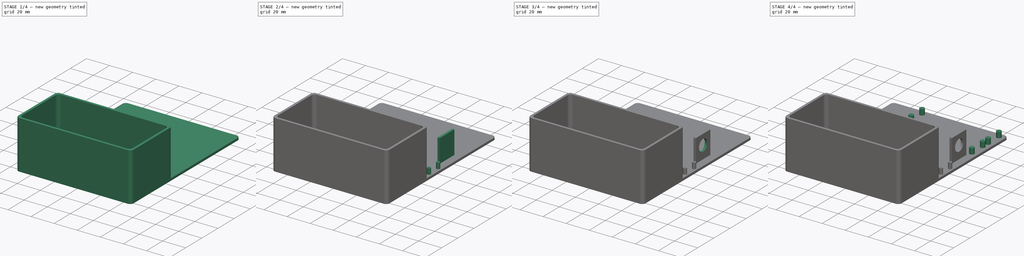
[diagram: build sequence overview — one tinted view per stage of 4, left to right]
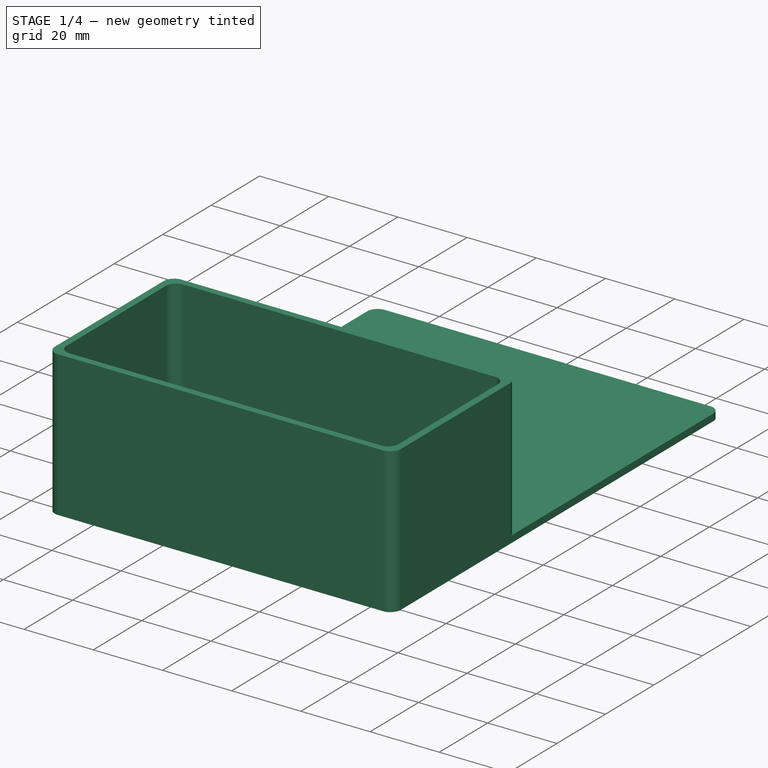
[diagram: stage 1 of 4 — iso view after this stage's code; geometry added in this stage tinted green]
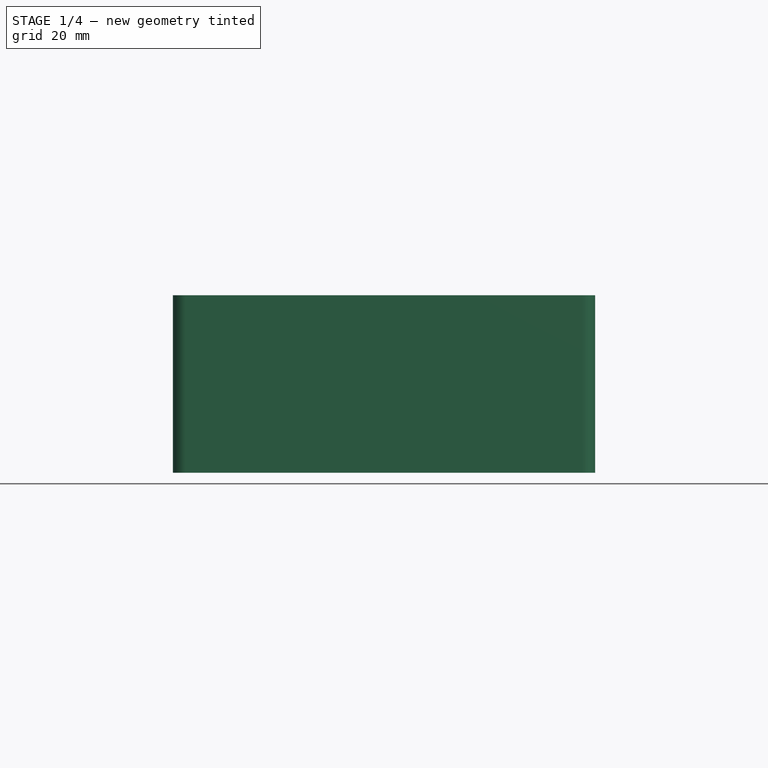
[diagram: stage 1 of 4 — front view after this stage's code; geometry added in this stage tinted green]
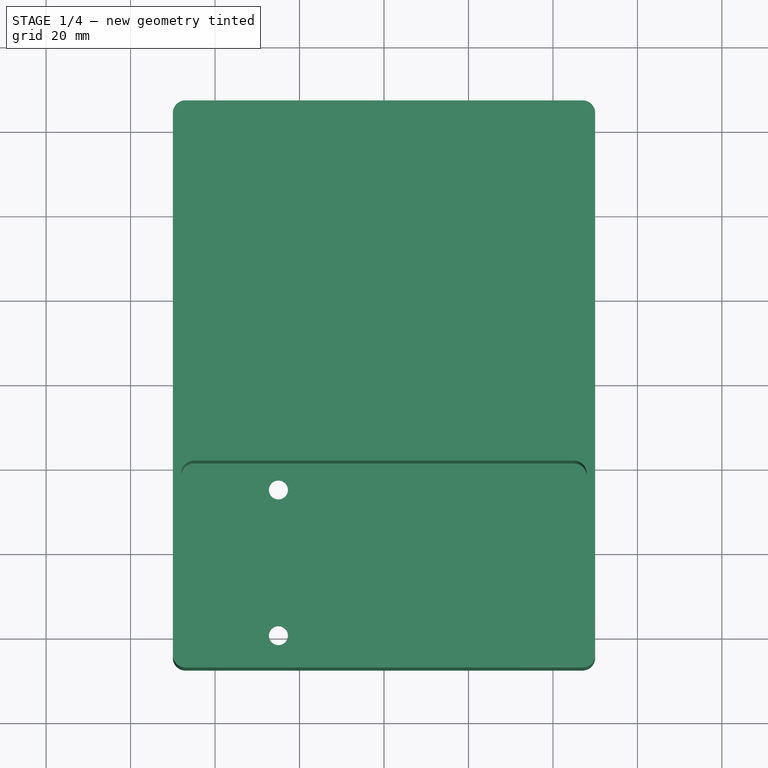
[diagram: stage 1 of 4 — top view after this stage's code; geometry added in this stage tinted green]
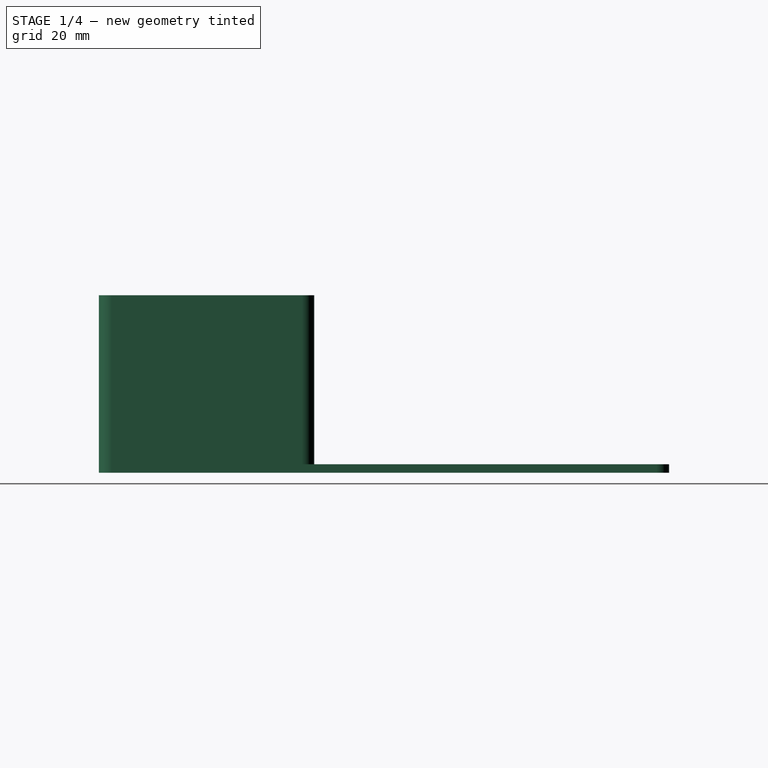
[diagram: stage 1 of 4 — right view after this stage's code; geometry added in this stage tinted green]
FCSTD DOCUMENT  (FreeCAD 0.22R36807 (Git))
Label: Jaackd Aeroponics Controller 2.0 - Scaffold - old
License: Creative Commons Attribution 4.0
LicenseURL: https://creativecommons.org/licenses/by/4.0/
objects: Sketcher::SketchObject×10, PartDesign::Pad×7, PartDesign::SubShapeBinder×7, PartDesign::Hole×3, PartDesign::Pocket×2, Spreadsheet::Sheet×1, PartDesign::Body×1
note: 42 computed .brp shape members not serialized (recipe doc carries the construction recipe); baked Part::Feature solids carry a one-line shape summary decoded from their .brp
EXTERNAL_REF file=CrocSee 12V DC Diaphragm Transfer Pump 1.3 LPM.FCStd obj=Body
EXTERNAL_REF file=Raspberry Pi Pico W v2.FCStd obj=Part
EXTERNAL_REF file=Buck Converter.FCStd obj=Body
EXTERNAL_REF file=12V DC Adapter Plug.FCStd obj=Body
EXTERNAL_REF file=Relay Switch 3.3V in 10A, 250V out.FCStd obj=Body

FEATURE [Sketcher::SketchObject] Sketch  label="Base Sketch"
  AttachmentSupport = -> [XY_Plane]
  FullyConstrained = true
  MapMode = 5
  expr: Constraints[4] = <<config>>.scaffoldWidth
  expr: Constraints[5] = <<config>>.scaffoldHeight
  sketch-geometry (12):
    g0: LineSegment StartX=-50 StartY=64.5 StartZ=0 EndX=-50 EndY=-64.5 EndZ=0
    g1: LineSegment StartX=-47 StartY=-67.5 StartZ=0 EndX=47 EndY=-67.5 EndZ=0
    g2: LineSegment StartX=50 StartY=-64.5 StartZ=0 EndX=50 EndY=64.5 EndZ=0
    g3: LineSegment StartX=47 StartY=67.5 StartZ=0 EndX=-47 EndY=67.5 EndZ=0
    g4: ArcOfCircle CenterX=-47 CenterY=64.5 CenterZ=0 NormalX=0 NormalY=0 NormalZ=1 AngleXU=0 Radius=3 StartAngle=1.5708 EndAngle=3.14159
    g5: GeomPoint X=-50 Y=67.5 Z=0
    g6: ArcOfCircle CenterX=47 CenterY=64.5 CenterZ=0 NormalX=0 NormalY=0 NormalZ=1 AngleXU=0 Radius=3 StartAngle=1.2e-15 EndAngle=1.5708
    g7: GeomPoint X=50 Y=67.5 Z=0
    g8: ArcOfCircle CenterX=47 CenterY=-64.5 CenterZ=0 NormalX=0 NormalY=0 NormalZ=1 AngleXU=0 Radius=3 StartAngle=4.71239 EndAngle=6.28319
    g9: GeomPoint X=50 Y=-67.5 Z=0
    g10: ArcOfCircle CenterX=-47 CenterY=-64.5 CenterZ=0 NormalX=0 NormalY=0 NormalZ=1 AngleXU=0 Radius=3 StartAngle=3.14159 EndAngle=4.71239
    g11: GeomPoint X=-50 Y=-67.5 Z=0
  constraints (27):
    c: Vertical(g0)
    c: Vertical(g2)
    c: Horizontal(g1)
    c: Horizontal(g3)
    c: Distance(g5,g7) = 100
    c: Distance(g11,g5) = 135
    c: Symmetric(g7,g11,g-1)
    c: PointOnObject(g5,g3)
    c: PointOnObject(g5,g0)
    c: Tangent(g3,g4) = -1.5708
    c: Tangent(g0,g4) = -1.5708
    c: PointOnObject(g7,g3)
    c: PointOnObject(g7,g2)
    c: Tangent(g3,g6) = -1.5708
    c: Tangent(g2,g6) = -1.5708
    c: PointOnObject(g9,g2)
    c: PointOnObject(g9,g1)
    c: Tangent(g2,g8) = -1.5708
    c: Tangent(g1,g8) = -1.5708
    c: PointOnObject(g11,g1)
    c: PointOnObject(g11,g0)
    c: Tangent(g1,g10) = -1.5708
    c: Tangent(g0,g10) = -1.5708
    c: Equal(g4,g6)
    c: Equal(g6,g8)
    c: Equal(g8,g10)
    c: Radius(g4) = 3
FEATURE [Spreadsheet::Sheet] Spreadsheet  label="config"
  cells = A2='scaffoldHeight; B2(scaffoldHeight)=135; A3='scaffoldWidth; B3(scaffoldWidth)=100; A4='picoPostHeight; B4(picoPostHeight)=5; A5='picoPostRadius; B5(picoPostRadius)=1.5; A6='picoDistanceFromEdge; B6(picoDistanceFromEdge)=5; A7='buckConverterPostHeight; B7(buckConverterPostHeight)=5
FEATURE [PartDesign::Pad] Pad  label="Base"
  Direction = (0,0,1)
  Length = 2
  Length2 = 10
  Profile = -> Sketch
  ReferenceAxis = -> Sketch [N_Axis]
  Suppressed = false
  Type = 0
FEATURE [PartDesign::SubShapeBinder] Binder  label="Binder - CrocSee Pump"
  BindCopyOnChange = 0
  BindMode = 0
  ClaimChildren = false
  Context = -> Body [Binder.]
  Fuse = false
  MakeFace = true
  OffsetFill = false
  OffsetIntersection = false
  OffsetJoinType = 0
  OffsetOpenResult = false
  PartialLoad = false
  Placement = pos=(-25,-42,2) rot=(0,0,-1;1.5708rad)
  Relative = true
  Support = -> [<external CrocSee 12V DC Diaphragm Transfer Pump 1.3 LPM.FCStd>#Body[Pad009.Face19,Pad009.Edge77]]
  _Version = 2
FEATURE [Sketcher::SketchObject] Sketch001  label="Pump Enclosure Sketch"
  AttachmentSupport = -> [Pad]
  ExternalGeometry = -> [Pad,Binder]
  FullyConstrained = true
  MapMode = 5
  Placement = pos=(0,0,2) rot=(0,0,1;0rad)
  sketch-geometry (20):
    g0: LineSegment StartX=-47 StartY=-67.5 StartZ=0 EndX=47 EndY=-67.5 EndZ=0
    g1: LineSegment StartX=50 StartY=-64.5 StartZ=0 EndX=50 EndY=-19.5 EndZ=0
    g2: LineSegment StartX=47 StartY=-16.5 StartZ=0 EndX=-47 EndY=-16.5 EndZ=0
    g3: LineSegment StartX=-50 StartY=-19.5 StartZ=0 EndX=-50 EndY=-64.5 EndZ=0
    g4: ArcOfCircle CenterX=-47 CenterY=-64.5 CenterZ=0 NormalX=0 NormalY=0 NormalZ=1 AngleXU=0 Radius=3 StartAngle=3.14159 EndAngle=4.71239
    g5: ArcOfCircle CenterX=47 CenterY=-64.5 CenterZ=0 NormalX=0 NormalY=0 NormalZ=1 AngleXU=0 Radius=3 StartAngle=4.71239 EndAngle=6.28319
    g6: ArcOfCircle CenterX=47 CenterY=-19.5 CenterZ=0 NormalX=0 NormalY=0 NormalZ=1 AngleXU=0 Radius=3 StartAngle=5e-16 EndAngle=1.5708
    g7: ArcOfCircle CenterX=-47 CenterY=-19.5 CenterZ=0 NormalX=0 NormalY=0 NormalZ=1 AngleXU=0 Radius=3 StartAngle=1.5708 EndAngle=3.14159
    g8: GeomPoint X=-50 Y=-67.5 Z=0
    g9: GeomPoint X=50 Y=-16.5 Z=0
    g10: LineSegment StartX=-48 StartY=-21.5 StartZ=0 EndX=-48 EndY=-62.5 EndZ=0
    g11: LineSegment StartX=-45 StartY=-65.5 StartZ=0 EndX=45 EndY=-65.5 EndZ=0
    g12: LineSegment StartX=48 StartY=-62.5 StartZ=0 EndX=48 EndY=-21.5 EndZ=0
    g13: LineSegment StartX=45 StartY=-18.5 StartZ=0 EndX=-45 EndY=-18.5 EndZ=0
    g14: ArcOfCircle CenterX=-45 CenterY=-21.5 CenterZ=0 NormalX=0 NormalY=0 NormalZ=1 AngleXU=0 Radius=3 StartAngle=1.5708 EndAngle=3.14159
    g15: ArcOfCircle CenterX=-45 CenterY=-62.5 CenterZ=0 NormalX=0 NormalY=0 NormalZ=1 AngleXU=0 Radius=3 StartAngle=3.14159 EndAngle=4.71239
    g16: ArcOfCircle CenterX=45 CenterY=-62.5 CenterZ=0 NormalX=0 NormalY=0 NormalZ=1 AngleXU=0 Radius=3 StartAngle=4.71239 EndAngle=6.28319
    g17: ArcOfCircle CenterX=45 CenterY=-21.5 CenterZ=0 NormalX=0 NormalY=0 NormalZ=1 AngleXU=0 Radius=3 StartAngle=5e-16 EndAngle=1.5708
    g18: GeomPoint X=-48 Y=-18.5 Z=0
    g19: GeomPoint X=48 Y=-65.5 Z=0
  constraints (46):
    c: Tangent(g0,g4) = -1.5708
    c: Tangent(g0,g5) = -1.5708
    c: Tangent(g1,g5) = -1.5708
    c: Tangent(g1,g6) = -1.5708
    c: Tangent(g2,g6) = -1.5708
    c: Tangent(g2,g7) = -1.5708
    c: Tangent(g3,g7) = -1.5708
    c: Tangent(g3,g4) = -1.5708
    c: Horizontal(g0)
    c: Horizontal(g2)
    c: Vertical(g1)
    c: Vertical(g3)
    c: Equal(g5,g6)
    c: Equal(g6,g7)
    c: PointOnObject(g8,g0)
    c: PointOnObject(g8,g3)
    c: PointOnObject(g9,g1)
    c: PointOnObject(g9,g2)
    c: Radius(g5) = 3
    c: Coincident(g4,g-3)
    c: Coincident(g5,g-4)
    c: DistanceY(g-6,g7) = 2
    c: Tangent(g10,g14) = -1.5708
    c: Tangent(g10,g15) = -1.5708
    c: Tangent(g11,g15) = -1.5708
    c: Tangent(g11,g16) = -1.5708
    c: Tangent(g12,g16) = -1.5708
    c: Tangent(g12,g17) = -1.5708
    c: Tangent(g13,g17) = -1.5708
    c: Tangent(g13,g14) = -1.5708
    c: Vertical(g10)
    c: Vertical(g12)
    c: Horizontal(g11)
    c: Horizontal(g13)
    c: Equal(g14,g15)
    c: Equal(g15,g16)
    c: Equal(g16,g17)
    c: PointOnObject(g18,g10)
    c: PointOnObject(g18,g13)
    c: PointOnObject(g19,g11)
    c: PointOnObject(g19,g12)
    c: Radius(g15) = 3
    c: DistanceY(g0,g11) = 2
    c: DistanceY(g13,g2) = 2
    c: DistanceX(g3,g10) = 2
    c: DistanceX(g12,g1) = 2
FEATURE [PartDesign::Pad] Pad001  label="Pump Enclosure"
  BaseFeature = -> Pad
  Direction = (0,0,1)
  Length = 40
  Length2 = 10
  Profile = -> Sketch001
  ReferenceAxis = -> Sketch001 [N_Axis]
  Suppressed = false
  Type = 0
FEATURE [Sketcher::SketchObject] Sketch002  label="Pump Mounting Holes Sketch"
  AttachmentSupport = -> [Pad001]
  ExternalGeometry = -> [Binder]
  FullyConstrained = true
  MapMode = 5
  Placement = pos=(0,0,2) rot=(0,0,1;0rad)
  sketch-geometry (2):
    g0: Circle CenterX=-25 CenterY=-24.75 CenterZ=0 NormalX=0 NormalY=0 NormalZ=1 AngleXU=0 Radius=2.25
    g1: Circle CenterX=-25 CenterY=-59.25 CenterZ=0 NormalX=0 NormalY=0 NormalZ=1 AngleXU=0 Radius=2.25
  constraints (4):
    c: Radius(g0) = 2.25
    c: Equal(g0,g1)
    c: Coincident(g-4,g0)
    c: Coincident(g1,g-3)
FEATURE [PartDesign::Pocket] Pocket  label="Pump Mounting Holes"
  BaseFeature = -> Pad001
  Direction = (0,0,-1)
  Length = 5
  Length2 = 5
  Profile = -> Sketch002
  ReferenceAxis = -> Sketch002 [N_Axis]
  Suppressed = false
  Type = 1
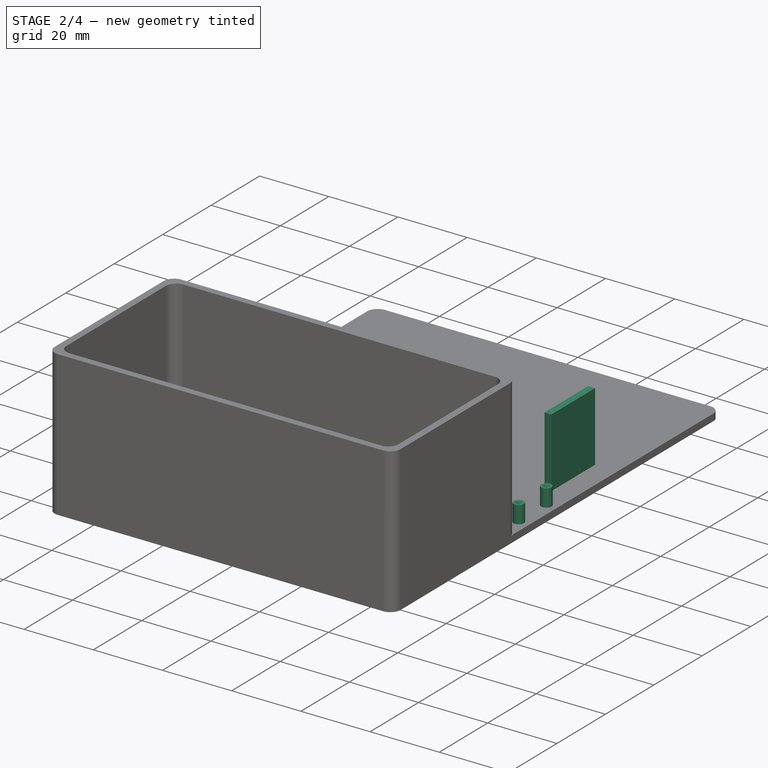
[diagram: stage 2 of 4 — iso view after this stage's code; geometry added in this stage tinted green]
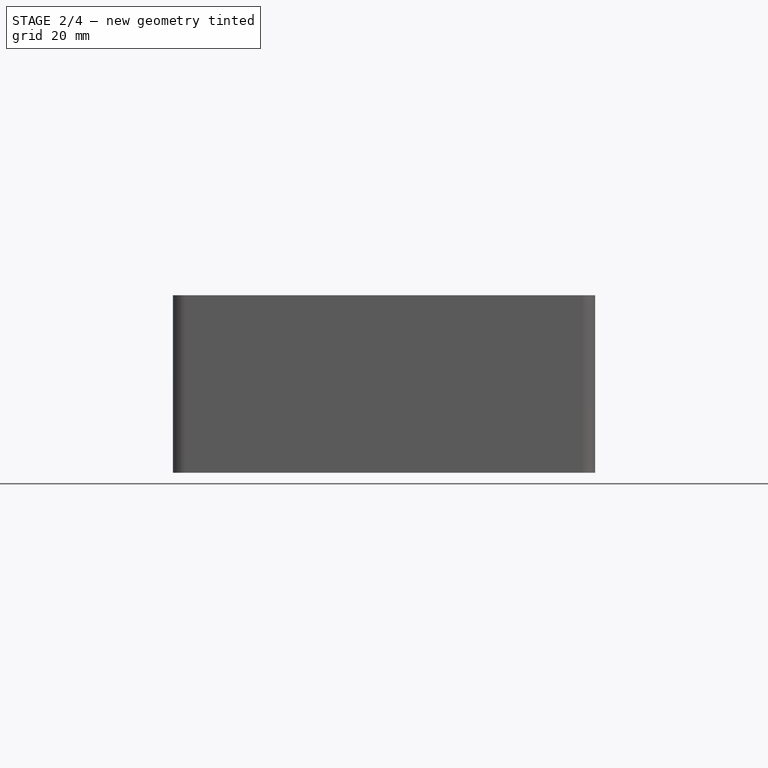
[diagram: stage 2 of 4 — front view after this stage's code; geometry added in this stage tinted green]
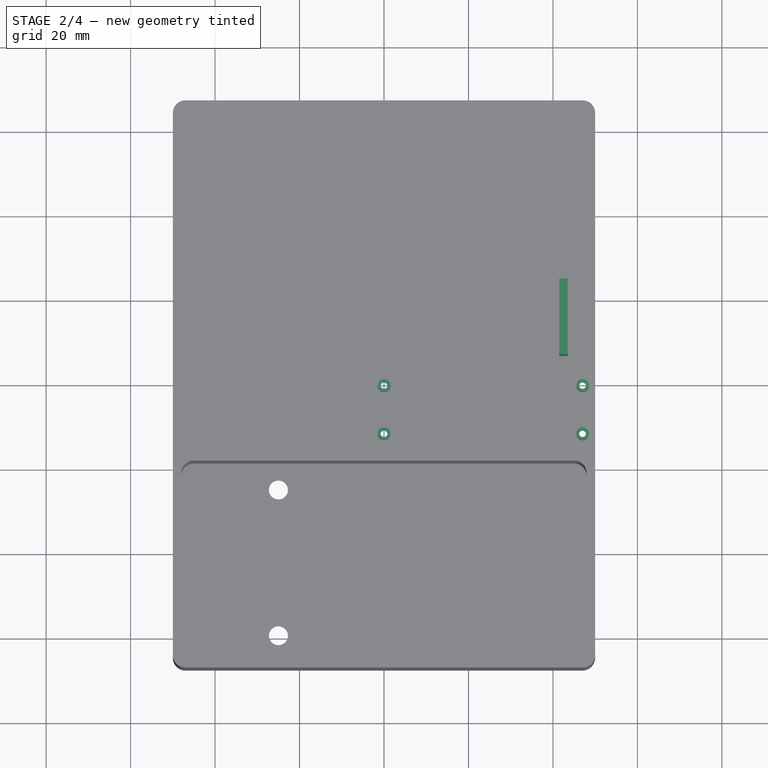
[diagram: stage 2 of 4 — top view after this stage's code; geometry added in this stage tinted green]
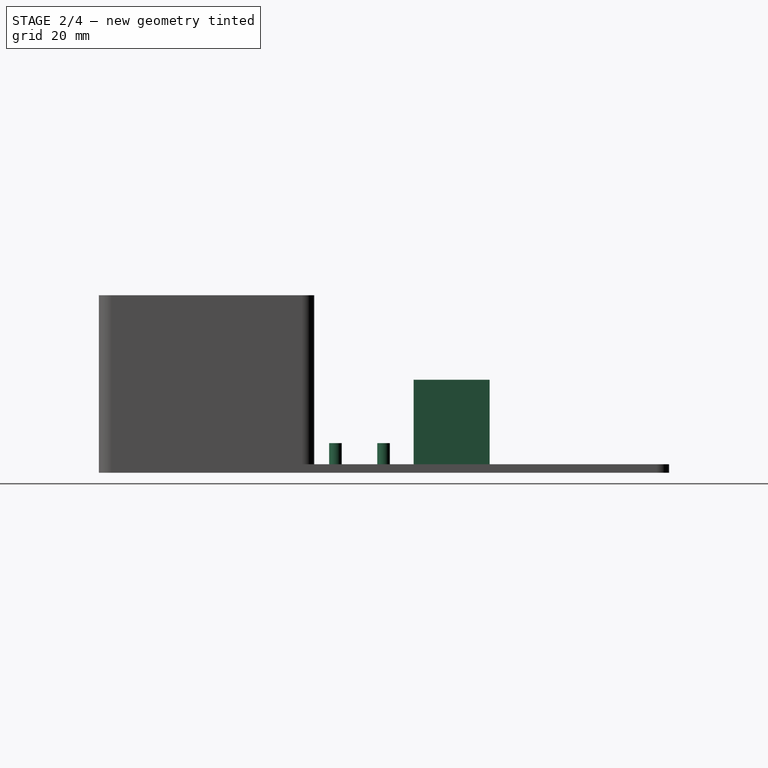
[diagram: stage 2 of 4 — right view after this stage's code; geometry added in this stage tinted green]
FEATURE [PartDesign::SubShapeBinder] Binder001  label="Binder - PicoW"
  BindCopyOnChange = 0
  BindMode = 0
  ClaimChildren = false
  Context = -> Body [Binder001.]
  Fuse = false
  MakeFace = true
  OffsetFill = false
  OffsetIntersection = false
  OffsetJoinType = 0
  OffsetOpenResult = false
  PartialLoad = false
  Placement = pos=(49,-5.8,2) rot=(0,0,-1;1.5708rad)
  Relative = true
  Support = -> [<external Raspberry Pi Pico W v2.FCStd>#Part[RaspBerryPi_Pico_W_v2.RaspBerryPi_Pico_CircuitBoard_logo_v15.Part__Feature012.Edge4,RaspBerryPi_Pico_W_v2.RaspBerryPi_Pico_CircuitBoard_logo_v15.Part__Feature013.Edge4,RaspBerryPi_Pico_W_v2.RaspBerryPi_Pico_CircuitBoard_logo_v15.Part__Feature010.Edge4,RaspBerryPi_Pico_W_v2.RaspBerryPi_Pico_CircuitBoard_logo_v15.Part__Feature011.Edge4]]
  _Version = 2
FEATURE [Sketcher::SketchObject] Sketch003  label="PicoW Mounting Posts Sketch"
  AttachmentSupport = -> [Pocket]
  ExternalGeometry = -> [Binder001,Pocket]
  FullyConstrained = true
  MapMode = 5
  Placement = pos=(0,0,2) rot=(0,0,1;0rad)
  expr: Constraints[0] = <<config>>.picoPostRadius
  expr: Constraints[9] = <<config>>.picoDistanceFromEdge
  sketch-geometry (5):
    g0: Circle CenterX=0.00504523 CenterY=-0.101301 CenterZ=0 NormalX=0 NormalY=0 NormalZ=1 AngleXU=0 Radius=1.5
    g1: Circle CenterX=0.00504523 CenterY=-11.5013 CenterZ=0 NormalX=0 NormalY=0 NormalZ=1 AngleXU=0 Radius=1.5
    g2: Circle CenterX=47.005 CenterY=-0.101301 CenterZ=0 NormalX=0 NormalY=0 NormalZ=1 AngleXU=0 Radius=1.5
    g3: Circle CenterX=47.005 CenterY=-11.5013 CenterZ=0 NormalX=0 NormalY=0 NormalZ=1 AngleXU=0 Radius=1.5
    g4: GeomPoint X=47 Y=-11.5 Z=0
  constraints (10):
    c: Radius(g0) = 1.5
    c: Coincident(g0,g-3)
    c: Coincident(g1,g-4)
    c: Coincident(g2,g-5)
    c: Coincident(g3,g-6)
    c: Equal(g3,g2)
    c: Equal(g2,g0)
    c: Equal(g0,g1)
    c: Vertical(g4,g-7)
    c: DistanceY(g-7,g4) = 5
FEATURE [PartDesign::Pad] Pad002  label="PicoW Mounting Posts"
  BaseFeature = -> Pocket
  Direction = (0,0,1)
  Length = 5
  Length2 = 10
  Profile = -> Sketch003
  ReferenceAxis = -> Sketch003 [N_Axis]
  Suppressed = false
  Type = 0
  expr: Length = <<config>>.picoPostHeight
FEATURE [PartDesign::Hole] Hole  label="PicoW Mounting Posts Holes"
  BaseFeature = -> Pad002
  CustomThreadClearance = 0
  Depth = 25
  DepthType = 0
  Diameter = 1.619
  DrillForDepth = false
  DrillPoint = 1
  DrillPointAngle = 118
  HoleCutCountersinkAngle = 90
  HoleCutCustomValues = false
  HoleCutDepth = 0
  HoleCutDiameter = 6.1
  HoleCutType = 0
  ModelThread = true
  Profile = -> Pad002 [Face30,Face29,Face27,Face28]
  Suppressed = false
  Tapered = false
  TaperedAngle = 90
  ThreadClass = 0
  ThreadDepth = 25
  ThreadDepthType = 0
  ThreadDirection = 0
  ThreadFit = 0
  ThreadSize = 6
  ThreadType = 1
  Threaded = true
  UseCustomThreadClearance = false
FEATURE [PartDesign::SubShapeBinder] Binder002  label="Binder - Buck Converter"
  BindCopyOnChange = 0
  BindMode = 0
  ClaimChildren = false
  Context = -> Body [Binder002.]
  Fuse = false
  MakeFace = true
  OffsetFill = false
  OffsetIntersection = false
  OffsetJoinType = 0
  OffsetOpenResult = false
  PartialLoad = false
  Placement = pos=(-23,16,3) rot=(0,0,1;0rad)
  Relative = true
  Support = -> [<external Buck Converter.FCStd>#Body[Pad003.Face4]]
  _Version = 2
FEATURE [PartDesign::SubShapeBinder] Binder003  label="Binder - 12V DC Barrel Connector"
  BindCopyOnChange = 0
  BindMode = 0
  ClaimChildren = false
  Context = -> Body [Binder003.]
  Fuse = false
  MakeFace = true
  OffsetFill = false
  OffsetIntersection = false
  OffsetJoinType = 0
  OffsetOpenResult = false
  PartialLoad = false
  Placement = pos=(50,16,13) rot=(0.57735,0.57735,0.57735;4.18879rad)
  Relative = true
  Support = -> [<external 12V DC Adapter Plug.FCStd>#Body[AdditiveLoft001.Face24,AdditiveLoft001.Face10,AdditiveLoft001.Face20,AdditiveLoft001.Face26]]
  _Version = 2
FEATURE [Sketcher::SketchObject] Sketch004  label="Barrel Connector Bracket Base Sketch"
  AttachmentSupport = -> [Hole]
  ExternalGeometry = -> [Binder003]
  FullyConstrained = true
  MapMode = 5
  Placement = pos=(0,0,2) rot=(0,0,1;0rad)
  sketch-geometry (6):
    g0: LineSegment StartX=41.5 StartY=25 StartZ=0 EndX=41.5 EndY=7 EndZ=0
    g1: LineSegment StartX=41.5 StartY=7 StartZ=0 EndX=43.5 EndY=7 EndZ=0
    g2: LineSegment StartX=43.5 StartY=7 StartZ=0 EndX=43.5 EndY=25 EndZ=0
    g3: LineSegment StartX=43.5 StartY=25 StartZ=0 EndX=41.5 EndY=25 EndZ=0
    g4: GeomPoint X=42.5 Y=16 Z=0
    g5: LineSegment StartX=42.5 StartY=16 StartZ=0 EndX=30 EndY=16 EndZ=0
  constraints (16):
    c: Coincident(g0,g1)
    c: Coincident(g1,g2)
    c: Coincident(g2,g3)
    c: Coincident(g3,g0)
    c: Vertical(g0)
    c: Vertical(g2)
    c: Horizontal(g1)
    c: Horizontal(g3)
    c: Distance(g0,g2) = 2
    c: Distance(g1,g3) = 18
    c: Symmetric(g2,g0,g4)
    c: Vertical(g0,g-3)
    c: Coincident(g5,g4)
    c: Horizontal(g5)
    c: DistanceY(g5) = 16
    c: DistanceX(g5) = 30
FEATURE [PartDesign::Pad] Pad003  label="Barrel Connector Bracket Base"
  BaseFeature = -> Hole
  Direction = (0,0,1)
  Length = 20
  Length2 = 10
  Profile = -> Sketch004
  ReferenceAxis = -> Sketch004 [N_Axis]
  Suppressed = false
  Type = 0
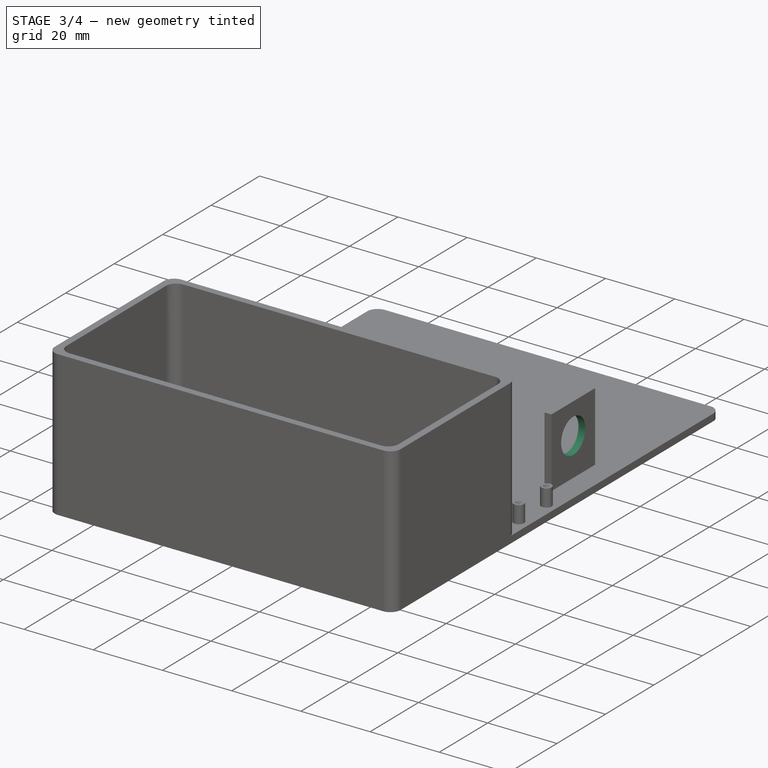
[diagram: stage 3 of 4 — iso view after this stage's code; geometry added in this stage tinted green]
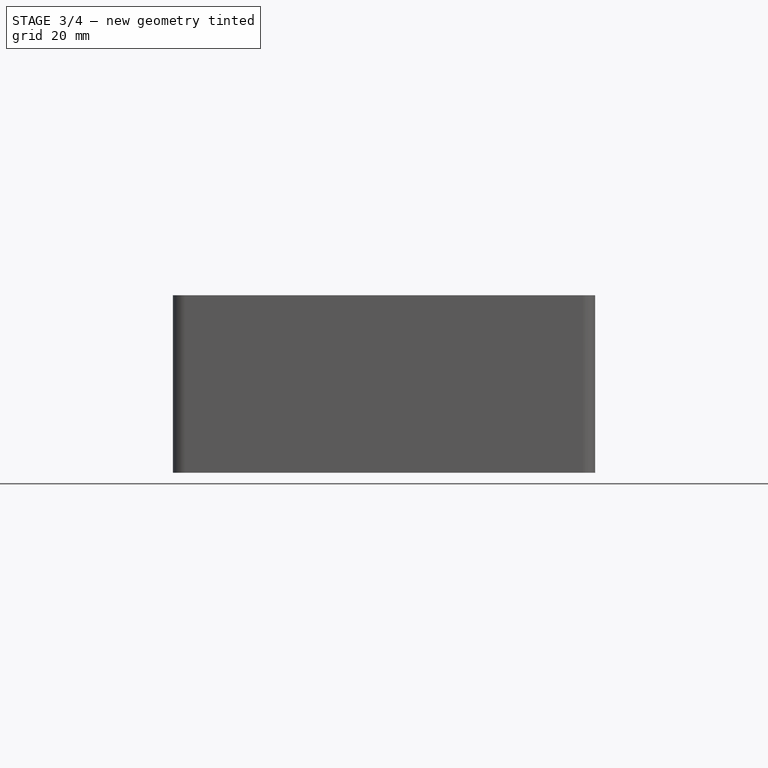
[diagram: stage 3 of 4 — front view after this stage's code; geometry added in this stage tinted green]
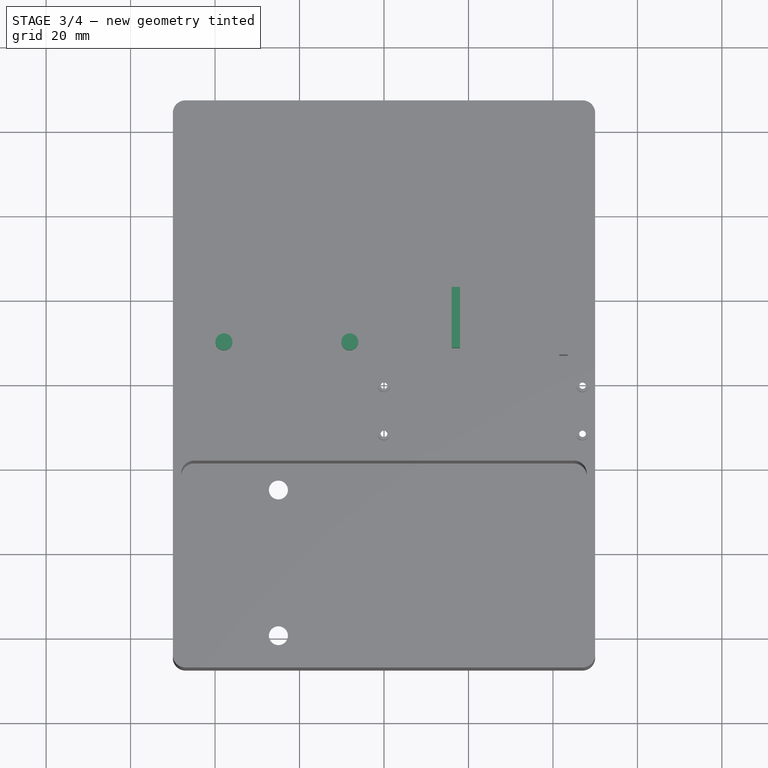
[diagram: stage 3 of 4 — top view after this stage's code; geometry added in this stage tinted green]
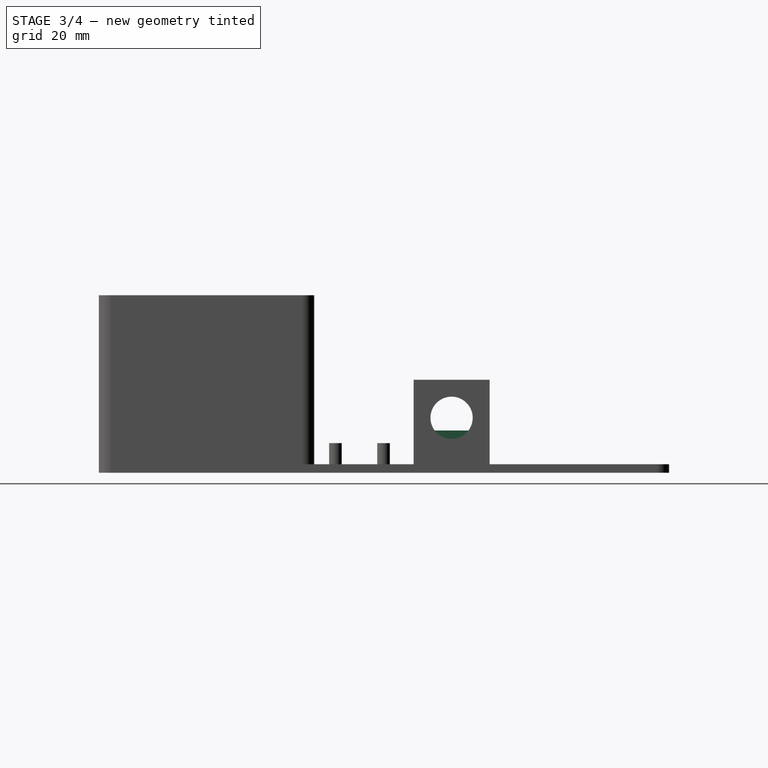
[diagram: stage 3 of 4 — right view after this stage's code; geometry added in this stage tinted green]
FEATURE [Sketcher::SketchObject] Sketch005  label="Barrel Connector Bracket Hole Sketch"
  AttachmentSupport = -> [Pad003]
  ExternalGeometry = -> [Pad003,Binder003]
  FullyConstrained = true
  MapMode = 5
  Placement = pos=(43.5,0,0) rot=(0.57735,0.57735,0.57735;2.0944rad)
  sketch-geometry (1):
    g0: Circle CenterX=16 CenterY=13 CenterZ=0 NormalX=0 NormalY=0 NormalZ=1 AngleXU=0 Radius=5
  constraints (2):
    c: Radius(g0) = 5
    c: Coincident(g0,g-6)
FEATURE [PartDesign::Pocket] Pocket001  label="Barrel Connector Bracket Hole"
  BaseFeature = -> Pad003
  Direction = (-1,0,0)
  Length = 5
  Length2 = 5
  Profile = -> Sketch005
  ReferenceAxis = -> Sketch005 [N_Axis]
  Suppressed = false
  Type = 1
FEATURE [Sketcher::SketchObject] Sketch006  label="Barrel Connector Back Brace Sketch"
  AttachmentSupport = -> [Pocket001]
  ExternalGeometry = -> [Binder003]
  FullyConstrained = true
  MapMode = 5
  Placement = pos=(0,0,2) rot=(0,0,1;0rad)
  sketch-geometry (4):
    g0: LineSegment StartX=18 StartY=23.2 StartZ=0 EndX=16 EndY=23.2 EndZ=0
    g1: LineSegment StartX=16 StartY=23.2 StartZ=0 EndX=16 EndY=8.8 EndZ=0
    g2: LineSegment StartX=16 StartY=8.8 StartZ=0 EndX=18 EndY=8.8 EndZ=0
    g3: LineSegment StartX=18 StartY=8.8 StartZ=0 EndX=18 EndY=23.2 EndZ=0
  constraints (10):
    c: Coincident(g0,g1)
    c: Coincident(g1,g2)
    c: Coincident(g2,g3)
    c: Coincident(g3,g0)
    c: Horizontal(g0)
    c: Horizontal(g2)
    c: Vertical(g1)
    c: Coincident(g0,g-3)
    c: Coincident(g2,g-4)
    c: DistanceX(g0,g0) = 2
FEATURE [PartDesign::Pad] Pad004  label="Barrel Connector Back Brace"
  BaseFeature = -> Pocket001
  Direction = (0,0,1)
  Length = 8
  Length2 = 10
  Profile = -> Sketch006
  ReferenceAxis = -> Sketch006 [N_Axis]
  Suppressed = false
  Type = 0
FEATURE [Sketcher::SketchObject] Sketch007  label="Buck Converter Posts Sketch"
  AttachmentSupport = -> [Pad004]
  ExternalGeometry = -> [Binder002]
  FullyConstrained = true
  MapMode = 5
  Placement = pos=(0,0,2) rot=(0,0,1;0rad)
  sketch-geometry (2):
    g0: Circle CenterX=-37.9 CenterY=10.25 CenterZ=0 NormalX=0 NormalY=0 NormalZ=1 AngleXU=0 Radius=2
    g1: Circle CenterX=-8.1 CenterY=10.25 CenterZ=0 NormalX=0 NormalY=0 NormalZ=1 AngleXU=0 Radius=2
  constraints (4):
    c: Radius(g0) = 2
    c: Coincident(g1,g-4)
    c: Equal(g0,g1)
    c: Coincident(g0,g-3)
FEATURE [PartDesign::Pad] Pad005  label="Buck Converter Posts"
  BaseFeature = -> Pad004
  Direction = (0,0,1)
  Length = 5
  Length2 = 10
  Profile = -> Sketch007
  ReferenceAxis = -> Sketch007 [N_Axis]
  Suppressed = false
  Type = 0
  expr: Length = <<config>>.buckConverterPostHeight
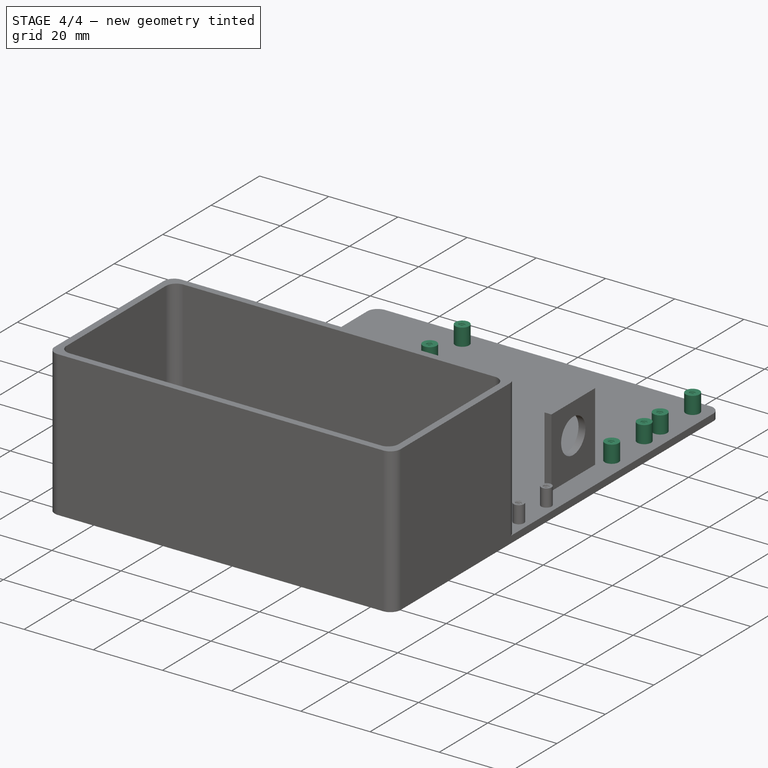
[diagram: stage 4 of 4 — iso view after this stage's code; geometry added in this stage tinted green]
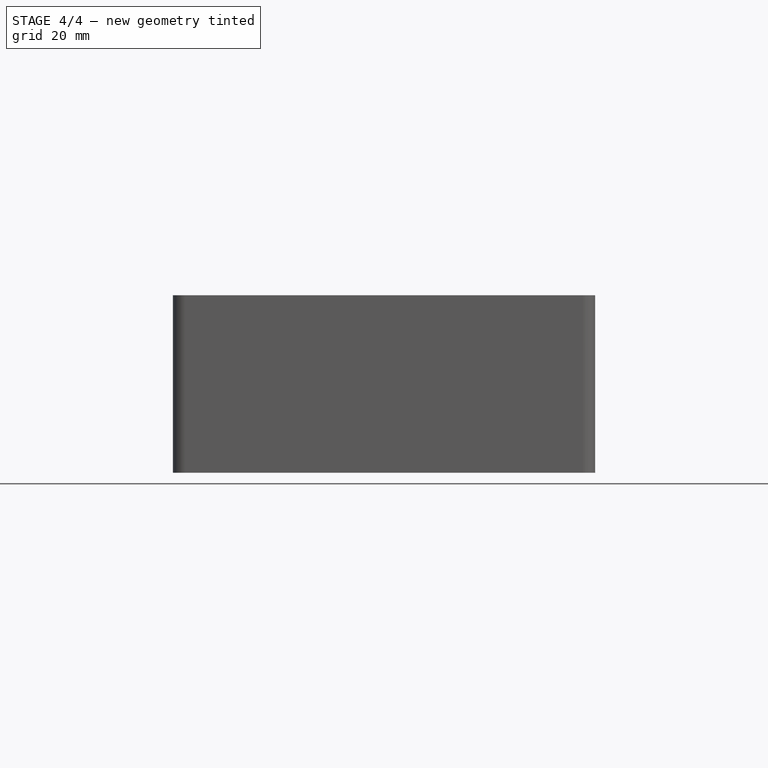
[diagram: stage 4 of 4 — front view after this stage's code; geometry added in this stage tinted green]
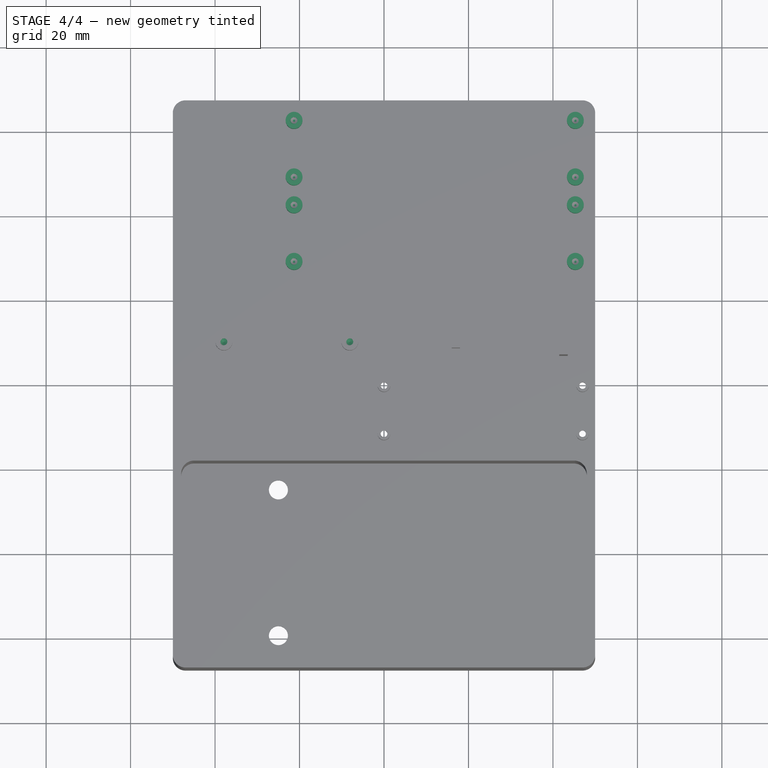
[diagram: stage 4 of 4 — top view after this stage's code; geometry added in this stage tinted green]
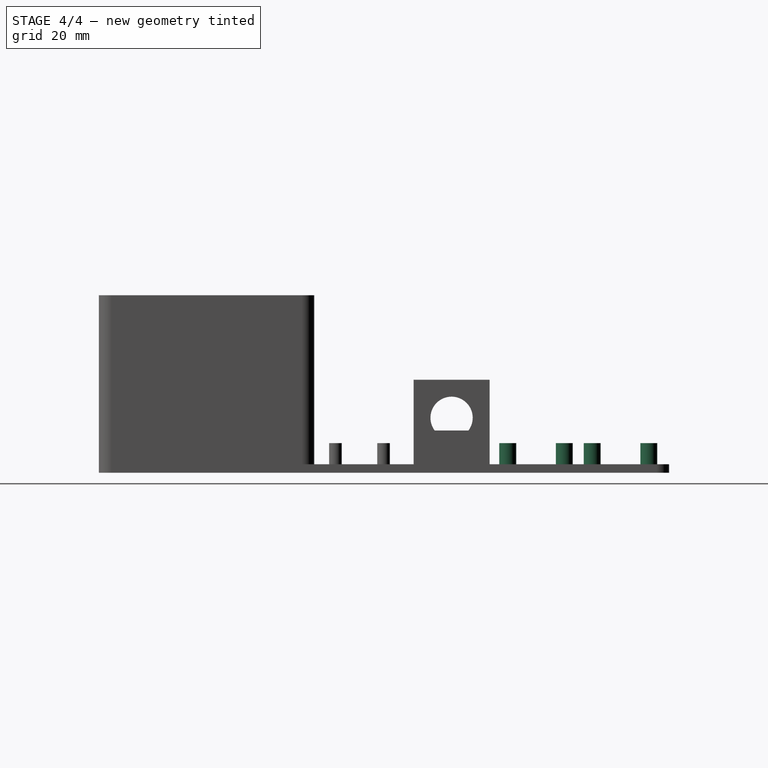
[diagram: stage 4 of 4 — right view after this stage's code; geometry added in this stage tinted green]
FEATURE [PartDesign::Hole] Hole001  label="Buck Converter Post Holes"
  BaseFeature = -> Pad005
  CustomThreadClearance = 0
  Depth = 3
  DepthType = 0
  Diameter = 1.619
  DrillForDepth = false
  DrillPoint = 1
  DrillPointAngle = 118
  HoleCutCountersinkAngle = 90
  HoleCutCustomValues = false
  HoleCutDepth = 0
  HoleCutDiameter = 6.1
  HoleCutType = 0
  ModelThread = true
  Profile = -> Pad005 [Face77,Face78]
  Suppressed = false
  Tapered = false
  TaperedAngle = 90
  ThreadClass = 0
  ThreadDepth = 3
  ThreadDepthType = 0
  ThreadDirection = 0
  ThreadFit = 0
  ThreadSize = 6
  ThreadType = 1
  Threaded = true
  UseCustomThreadClearance = false
FEATURE [PartDesign::SubShapeBinder] Binder004  label="Binder - Relay Switch - Pump"
  BindCopyOnChange = 0
  BindMode = 0
  ClaimChildren = false
  Context = -> Body [Binder004.]
  Fuse = false
  MakeFace = true
  OffsetFill = false
  OffsetIntersection = false
  OffsetJoinType = 0
  OffsetOpenResult = false
  PartialLoad = false
  Placement = pos=(12,36,7) rot=(0,0,1;0rad)
  Relative = true
  Support = -> [<external Relay Switch 3.3V in 10A, 250V out.FCStd>#Body[Pad001.Face4]]
  _Version = 2
FEATURE [PartDesign::SubShapeBinder] Binder005  label="Binder - Relay Switch - Solenoid"
  BindCopyOnChange = 0
  BindMode = 0
  ClaimChildren = false
  Context = -> Body [Binder005.]
  Fuse = false
  MakeFace = true
  OffsetFill = false
  OffsetIntersection = false
  OffsetJoinType = 0
  OffsetOpenResult = false
  PartialLoad = false
  Placement = pos=(12,56,7) rot=(0,0,1;0rad)
  Relative = true
  Support = -> [<external Relay Switch 3.3V in 10A, 250V out.FCStd>#Body[Pad001.Face4]]
  _Version = 2
FEATURE [Sketcher::SketchObject] Sketch008  label="Relay Switch Posts Sketch"
  AttachmentSupport = -> [Hole001]
  ExternalGeometry = -> [Binder005,Binder004]
  FullyConstrained = true
  MapMode = 5
  Placement = pos=(0,0,2) rot=(0,0,1;0rad)
  sketch-geometry (8):
    g0: Circle CenterX=-21.3 CenterY=62.7 CenterZ=0 NormalX=0 NormalY=0 NormalZ=1 AngleXU=0 Radius=2
    g1: Circle CenterX=-21.3 CenterY=49.3 CenterZ=0 NormalX=0 NormalY=0 NormalZ=1 AngleXU=0 Radius=2
    g2: Circle CenterX=-21.3 CenterY=42.7 CenterZ=0 NormalX=0 NormalY=0 NormalZ=1 AngleXU=0 Radius=2
    g3: Circle CenterX=-21.3 CenterY=29.3 CenterZ=0 NormalX=0 NormalY=0 NormalZ=1 AngleXU=0 Radius=2
    g4: Circle CenterX=45.3 CenterY=62.7 CenterZ=0 NormalX=0 NormalY=0 NormalZ=1 AngleXU=0 Radius=2
    g5: Circle CenterX=45.3 CenterY=49.3 CenterZ=0 NormalX=0 NormalY=0 NormalZ=1 AngleXU=0 Radius=2
    g6: Circle CenterX=45.3 CenterY=42.7 CenterZ=0 NormalX=0 NormalY=0 NormalZ=1 AngleXU=0 Radius=2
    g7: Circle CenterX=45.3 CenterY=29.3 CenterZ=0 NormalX=0 NormalY=0 NormalZ=1 AngleXU=0 Radius=2
  constraints (16):
    c: Radius(g0) = 2
    c: Equal(g7,g6)
    c: Equal(g6,g5)
    c: Equal(g5,g4)
    c: Equal(g4,g3)
    c: Equal(g3,g2)
    c: Equal(g2,g1)
    c: Equal(g1,g0)
    c: Coincident(g1,g-4)
    c: Coincident(g-5,g2)
    c: Coincident(g3,g-6)
    c: Coincident(g7,g-7)
    c: Coincident(g6,g-8)
    c: Coincident(g5,g-9)
    c: Coincident(g4,g-10)
    c: Coincident(g0,g-3)
FEATURE [PartDesign::Pad] Pad006  label="Relay Switch Posts"
  BaseFeature = -> Hole001
  Direction = (0,0,1)
  Length = 5
  Length2 = 10
  Profile = -> Sketch008
  ReferenceAxis = -> Sketch008 [N_Axis]
  Suppressed = false
  Type = 0
  expr: Length = <<config>>.picoPostHeight
FEATURE [PartDesign::Hole] Hole002  label="Relay Switch Posts Holes"
  BaseFeature = -> Pad006
  CustomThreadClearance = 0
  Depth = 5
  DepthType = 0
  Diameter = 1.619
  DrillForDepth = false
  DrillPoint = 1
  DrillPointAngle = 118
  HoleCutCountersinkAngle = 90
  HoleCutCustomValues = false
  HoleCutDepth = 0
  HoleCutDiameter = 6.1
  HoleCutType = 0
  ModelThread = true
  Profile = -> Pad006 [Face94,Face95,Face96,Face97,Face93,Face92,Face91,Face90]
  Suppressed = false
  Tapered = false
  TaperedAngle = 90
  ThreadClass = 0
  ThreadDepth = 5
  ThreadDepthType = 0
  ThreadDirection = 0
  ThreadFit = 0
  ThreadSize = 6
  ThreadType = 1
  Threaded = true
  UseCustomThreadClearance = false
  expr: Depth = <<config>>.picoPostHeight
FEATURE [PartDesign::SubShapeBinder] Binder006  label="Binder CrocSee Pump Connectors"
  BindCopyOnChange = 0
  BindMode = 0
  ClaimChildren = false
  Context = -> Body [Binder006.]
  Fuse = false
  MakeFace = true
  OffsetFill = false
  OffsetIntersection = false
  OffsetJoinType = 0
  OffsetOpenResult = false
  PartialLoad = false
  Placement = pos=(-25,-42,2) rot=(0,0,-1;1.5708rad)
  Relative = true
  Support = -> [<external CrocSee 12V DC Diaphragm Transfer Pump 1.3 LPM.FCStd>#Body[Pad009.Face19,Pad009.Face35,Pad009.Face34]]
  _Version = 2
FEATURE [Sketcher::SketchObject] Sketch009  label="Pump Enclosure Inner Connection Base Sketch"
  AttachmentSupport = -> [Hole002]
  ExternalGeometry = -> [Binder006]
  FullyConstrained = true
  MapMode = 5
  Placement = pos=(48,0,0) rot=(0.57735,-0.57735,-0.57735;2.0944rad)
  sketch-geometry (1):
    g0: Circle CenterX=42 CenterY=17.1 CenterZ=0 NormalX=0 NormalY=0 NormalZ=1 AngleXU=0 Radius=2.92
  constraints (2):
    c: Coincident(g-6,g0)
    c: Radius(g0) = 2.92
FEATURE [PartDesign::Body] Body
  Group = -> [Sketch,Pad,Binder,Sketch001,Pad001,Sketch002,Pocket,Binder001,Sketch003,Pad002,Hole,Binder002,Binder003,Sketch004,Pad003,Sketch005,Pocket001,Sketch006,Pad004,Sketch007,Pad005,Hole001,Binder004,Binder005,Sketch008,Pad006,Hole002,Binder006,Sketch009]
  Origin = -> Origin
  Tip = -> Hole002
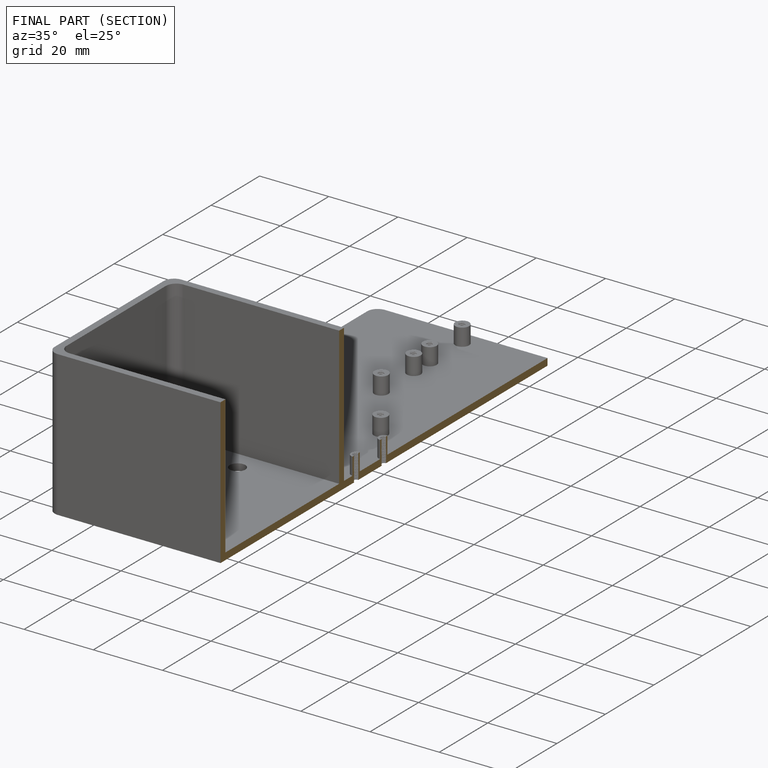
[diagram: finished part — half-section view (interior)]
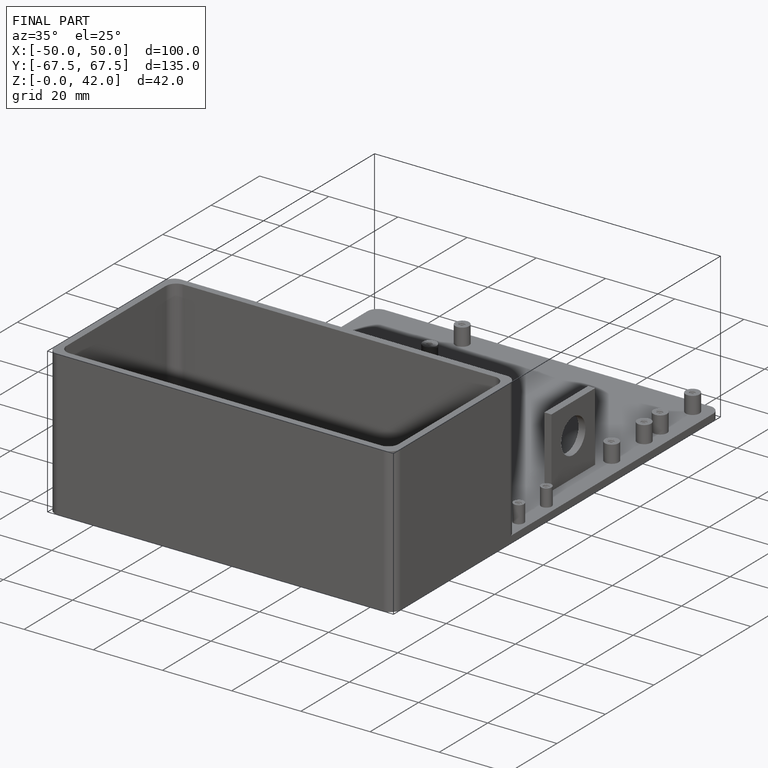
[diagram: finished part — iso view with bounding-box wireframe]
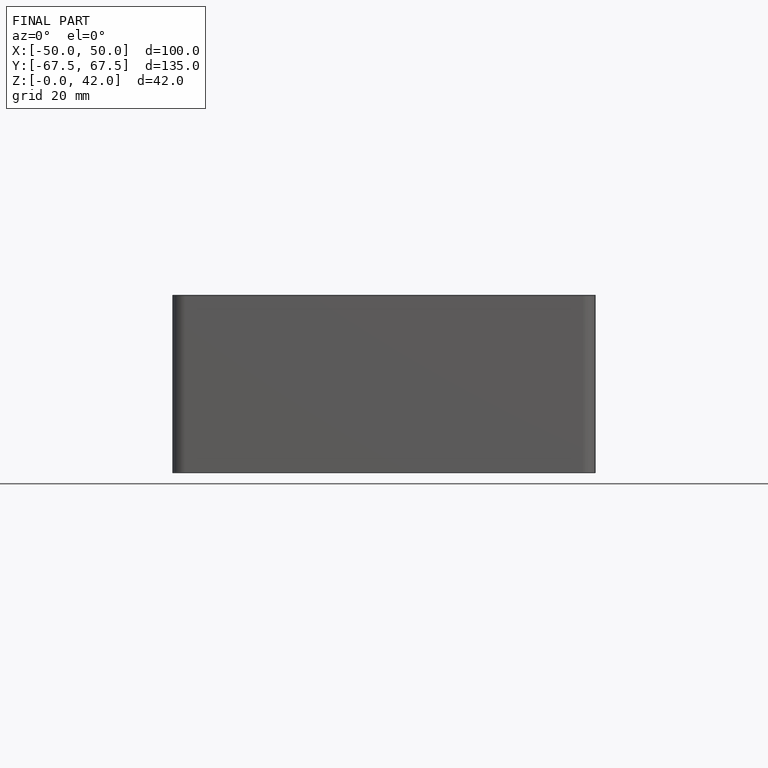
[diagram: finished part — front view with bounding-box wireframe]
